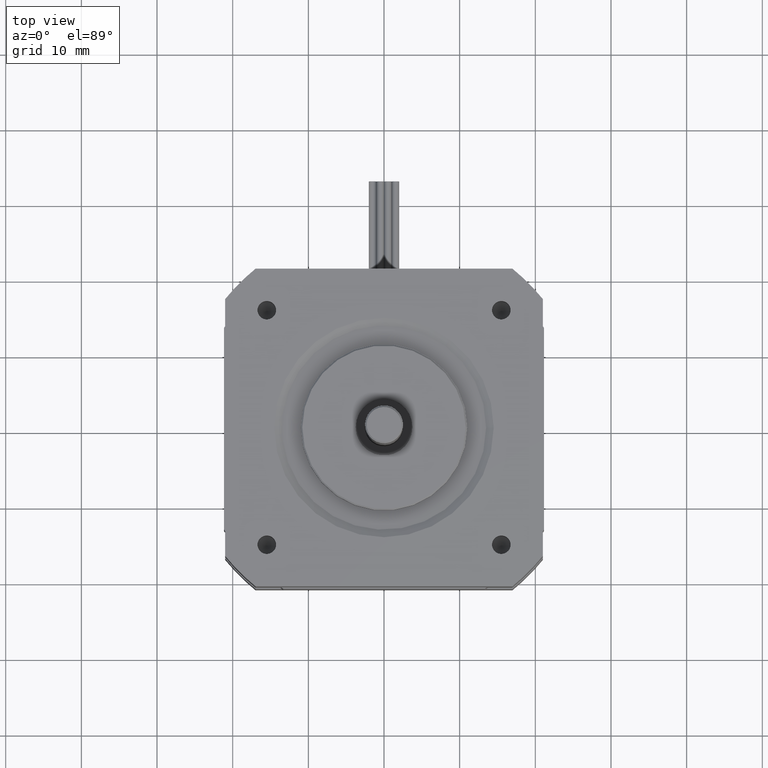
[diagram: clean part render]
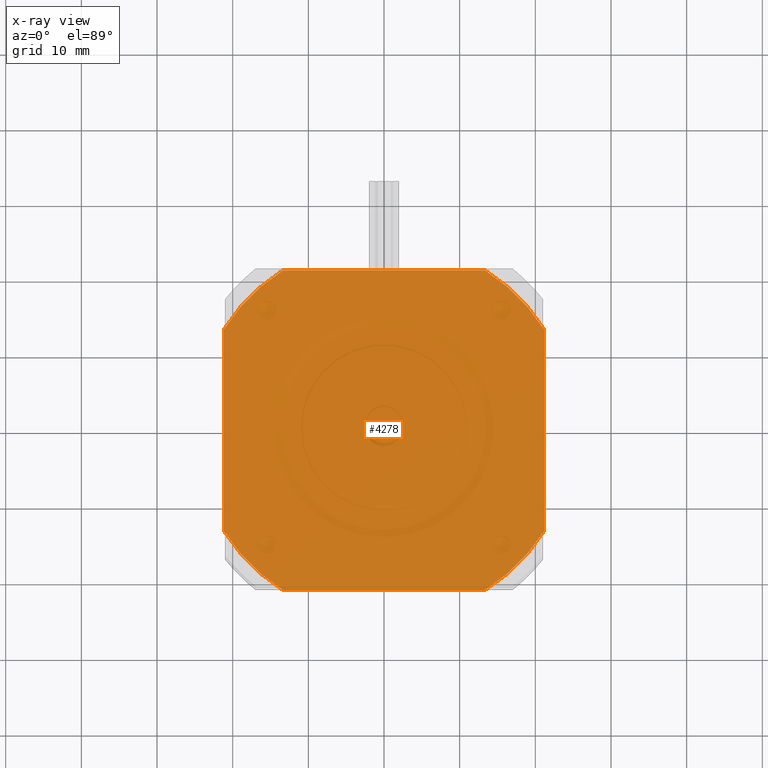
[diagram: x-ray — body ghosted, one internal face saturated and labeled with its STEP entity id]
A machine part, top view, then the same camera in x-ray: the body is ghosted and one INTERNAL B-rep face — a face not visible from any outside direction — is saturated and labeled: STEP entity #4278.
In plain terms, the highlighted planar face has unit normal (0, -0, 1).
Its self-contained STEP definition (entity closure, byte-faithful):
#343=LINE('',#7455,#591);
#344=LINE('',#7459,#592);
#345=LINE('',#7463,#593);
#346=LINE('',#7466,#594);
#591=VECTOR('',#6064,10.);
#592=VECTOR('',#6067,10.);
#593=VECTOR('',#6070,10.);
#594=VECTOR('',#6073,10.);
#735=PLANE('',#4806);
#827=FACE_BOUND('',#1484,.T.);
#1134=FACE_OUTER_BOUND('',#1483,.T.);
#1483=EDGE_LOOP('',(#3785,#3786,#3787,#3788,#3789,#3790,#3791,#3792));
#1484=EDGE_LOOP('',(#3793));
#1725=CIRCLE('',#4804,0.5);
#1727=CIRCLE('',#4807,25.);
#1728=CIRCLE('',#4808,25.);
#1729=CIRCLE('',#4809,25.);
#1730=CIRCLE('',#4810,25.);
#2113=VERTEX_POINT('',#7446);
#2115=VERTEX_POINT('',#7451);
#2116=VERTEX_POINT('',#7452);
#2117=VERTEX_POINT('',#7454);
#2118=VERTEX_POINT('',#7456);
#2119=VERTEX_POINT('',#7458);
#2120=VERTEX_POINT('',#7460);
#2121=VERTEX_POINT('',#7462);
#2122=VERTEX_POINT('',#7464);
#2673=EDGE_CURVE('',#2113,#2113,#1725,.T.);
#2675=EDGE_CURVE('',#2115,#2116,#1727,.T.);
#2676=EDGE_CURVE('',#2117,#2115,#343,.T.);
#2677=EDGE_CURVE('',#2118,#2117,#1728,.T.);
#2678=EDGE_CURVE('',#2119,#2118,#344,.T.);
#2679=EDGE_CURVE('',#2120,#2119,#1729,.T.);
#2680=EDGE_CURVE('',#2121,#2120,#345,.T.);
#2681=EDGE_CURVE('',#2122,#2121,#1730,.T.);
#2682=EDGE_CURVE('',#2116,#2122,#346,.T.);
#3785=ORIENTED_EDGE('',*,*,#2675,.F.);
#3786=ORIENTED_EDGE('',*,*,#2676,.F.);
#3787=ORIENTED_EDGE('',*,*,#2677,.F.);
#3788=ORIENTED_EDGE('',*,*,#2678,.F.);
#3789=ORIENTED_EDGE('',*,*,#2679,.F.);
#3790=ORIENTED_EDGE('',*,*,#2680,.F.);
#3791=ORIENTED_EDGE('',*,*,#2681,.F.);
#3792=ORIENTED_EDGE('',*,*,#2682,.F.);
#3793=ORIENTED_EDGE('',*,*,#2673,.T.);
#4278=ADVANCED_FACE('',(#1134,#827),#735,.F.);
#4804=AXIS2_PLACEMENT_3D('',#7447,#6056,#6057);
#4806=AXIS2_PLACEMENT_3D('',#7450,#6060,#6061);
#4807=AXIS2_PLACEMENT_3D('',#7453,#6062,#6063);
#4808=AXIS2_PLACEMENT_3D('',#7457,#6065,#6066);
#4809=AXIS2_PLACEMENT_3D('',#7461,#6068,#6069);
#4810=AXIS2_PLACEMENT_3D('',#7465,#6071,#6072);
#6056=DIRECTION('center_axis',(9.4368957093138E-16,-2.46519032881585E-32,
1.));
#6057=DIRECTION('ref_axis',(-1.,2.22044604925031E-16,9.4368957093138E-16));
#6060=DIRECTION('center_axis',(9.4368957093138E-16,-2.46519032881585E-32,
1.));
#6061=DIRECTION('ref_axis',(1.,-2.22044604925031E-16,-8.88178419700125E-16));
#6062=DIRECTION('center_axis',(9.4368957093138E-16,-2.46519032881585E-32,
1.));
#6063=DIRECTION('ref_axis',(-0.845999999999999,-0.533182895449583,7.98361377007946E-16));
#6064=DIRECTION('',(-1.44375980718239E-15,1.,1.38711297625608E-30));
#6065=DIRECTION('center_axis',(9.4368957093138E-16,-2.46519032881585E-32,
1.));
#6066=DIRECTION('ref_axis',(-0.533182895449583,0.846,5.03159137834767E-16));
#6067=DIRECTION('',(1.,1.11059892476091E-15,-9.4368957093138E-16));
#6068=DIRECTION('center_axis',(9.4368957093138E-16,-2.46519032881585E-32,
1.));
#6069=DIRECTION('ref_axis',(0.845999999999999,0.533182895449583,-7.98361377007946E-16));
#6070=DIRECTION('',(1.44375980718239E-15,-1.,-1.38711297625608E-30));
#6071=DIRECTION('center_axis',(9.4368957093138E-16,-2.46519032881585E-32,
1.));
#6072=DIRECTION('ref_axis',(0.533182895449583,-0.846,-5.03159137834767E-16));
#6073=DIRECTION('',(-1.,-4.44277159917939E-16,9.4368957093138E-16));
#7446=CARTESIAN_POINT('',(0.499999999999985,4.66865789215177E-15,-15.5000000000001));
#7447=CARTESIAN_POINT('Origin',(-1.5334955527635E-14,4.71844785465692E-15,
-15.5000000000001));
#7450=CARTESIAN_POINT('Origin',(-1.64451785522601E-14,1.94289029309402E-15,
-15.5000000000001));
#7451=CARTESIAN_POINT('',(21.15,13.3295723862396,-15.5000000000001));
#7452=CARTESIAN_POINT('',(13.3295723862395,21.15,-15.5000000000001));
#7453=CARTESIAN_POINT('Origin',(-1.5334955527635E-14,4.71844785465692E-15,
-15.5000000000001));
#7454=CARTESIAN_POINT('',(21.15,-13.3295723862395,-15.5000000000001));
#7455=CARTESIAN_POINT('',(21.15,13.3295723862396,-15.5000000000001));
#7456=CARTESIAN_POINT('',(13.3295723862396,-21.15,-15.5000000000001));
#7457=CARTESIAN_POINT('Origin',(-1.5334955527635E-14,4.71844785465692E-15,
-15.5000000000001));
#7458=CARTESIAN_POINT('',(-13.3295723862395,-21.15,-15.5000000000001));
#7459=CARTESIAN_POINT('',(13.3295723862396,-21.15,-15.5000000000001));
#7460=CARTESIAN_POINT('',(-21.15,-13.3295723862396,-15.5));
#7461=CARTESIAN_POINT('Origin',(-1.5334955527635E-14,4.71844785465692E-15,
-15.5000000000001));
#7462=CARTESIAN_POINT('',(-21.15,13.3295723862395,-15.5));
#7463=CARTESIAN_POINT('',(-21.15,-13.3295723862396,-15.5));
#7464=CARTESIAN_POINT('',(-13.3295723862396,21.15,-15.5000000000001));
#7465=CARTESIAN_POINT('Origin',(-1.5334955527635E-14,4.71844785465692E-15,
-15.5000000000001));
#7466=CARTESIAN_POINT('',(-13.3295723862396,21.15,-15.5000000000001));